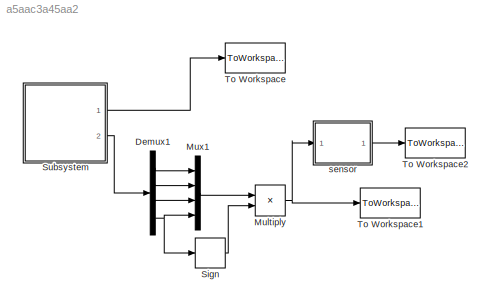
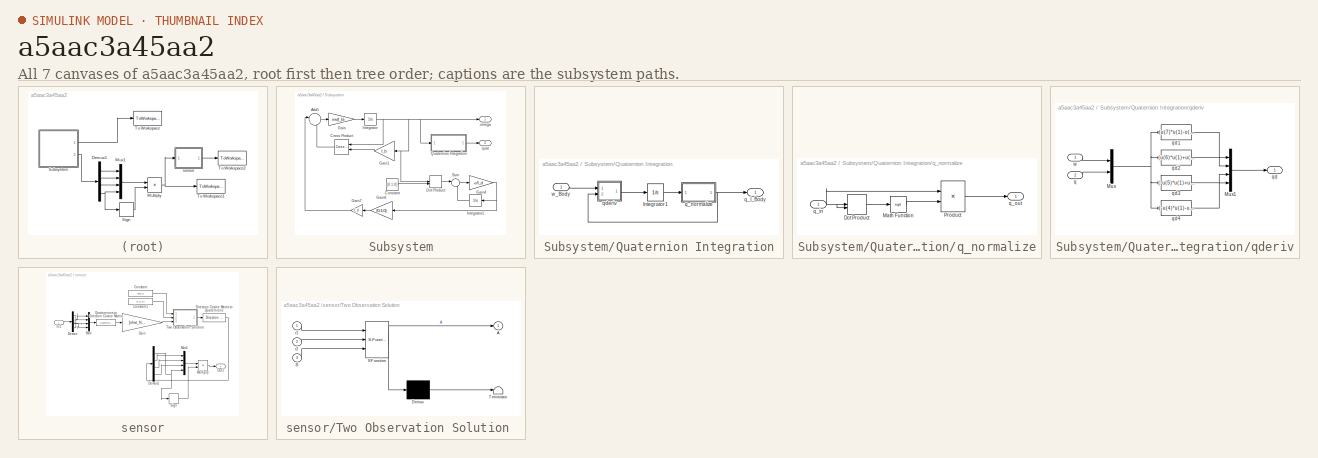
[diagram: thumbnail index - all 7 canvases of the model, root first then tree order]
MODEL slx_a5aac3a45aa2
KIND model
CONFIG AbsTol = auto
CONFIG EnableMultiTasking = off
CONFIG FixedStep = 1
CONFIG MaxStep = auto
CONFIG MinStep = auto
CONFIG RelTol = 1e-3
CONFIG SampleTimeConstraint = Unconstrained
CONFIG Solver = VariableStepAuto
CONFIG SolverName = VariableStepAuto
CONFIG StartTime = 0.0
CONFIG StopTime = t_f
BLOCK [Demux] Demux1
  DisplayOption = bar
  Ports = [1, 4]
BLOCK [Product] Multiply
  InputSameDT = off
  OutDataTypeStr = Inherit: Inherit via internal rule
  Ports = [2, 1]
  RndMeth = Floor
  SaturateOnIntegerOverflow = off
BLOCK [Mux] Mux1
  DisplayOption = bar
  Ports = [4, 1]
BLOCK [Signum] Sign
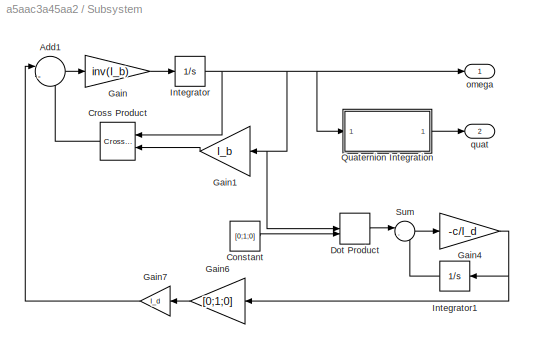
BLOCK [SubSystem] Subsystem
  Ports = [0, 2]
  RequestExecContextInheritance = off
BLOCK [Sum] Subsystem/Add1
  IconShape = round
  InputSameDT = off
  Inputs = |--
  OutDataTypeStr = Inherit: Inherit via internal rule
  Ports = [2, 1]
  SaturateOnIntegerOverflow = off
BLOCK [Constant] Subsystem/Constant
  Value = [0;1;0]
BLOCK [Reference] Subsystem/Cross Product  REF=vrlib/Utilities/Cross Product
  Ports = [2, 1]
  SourceBlock = vrlib/Utilities/Cross Product
  SourceProductBaseCode = VR
  SourceProductName = Simulink 3D Animation
  SourceType = Cross Product
BLOCK [DotProduct] Subsystem/Dot Product
  OutDataTypeStr = Inherit: Inherit via internal rule
BLOCK [Gain] Subsystem/Gain
  Gain = inv(I_b)
  Multiplication = Matrix(K*u) (u vector)
  OutDataTypeStr = Inherit: Inherit via internal rule
  ParamDataTypeStr = Inherit: Inherit via internal rule
  SaturateOnIntegerOverflow = off
BLOCK [Gain] Subsystem/Gain1
  Gain = I_b
  Multiplication = Matrix(K*u) (u vector)
  OutDataTypeStr = Inherit: Inherit via internal rule
  ParamDataTypeStr = Inherit: Inherit via internal rule
  SaturateOnIntegerOverflow = off
BLOCK [Gain] Subsystem/Gain4
  Gain = -c/I_d
  OutDataTypeStr = Inherit: Inherit via internal rule
  ParamDataTypeStr = Inherit: Inherit via internal rule
  SaturateOnIntegerOverflow = off
BLOCK [Gain] Subsystem/Gain6
  Gain = [0;1;0]
  OutDataTypeStr = Inherit: Inherit via internal rule
  ParamDataTypeStr = Inherit: Inherit via internal rule
  SaturateOnIntegerOverflow = off
BLOCK [Gain] Subsystem/Gain7
  Gain = I_d
  OutDataTypeStr = Inherit: Inherit via internal rule
  ParamDataTypeStr = Inherit: Inherit via internal rule
  SaturateOnIntegerOverflow = off
BLOCK [Integrator] Subsystem/Integrator
  InitialCondition = omega_b_t0
  Ports = [1, 1]
BLOCK [Integrator] Subsystem/Integrator1
  Ports = [1, 1]
BLOCK [SubSystem] Subsystem/Quaternion Integration
  Ports = [1, 1]
  RequestExecContextInheritance = off
BLOCK [Integrator] Subsystem/Quaternion Integration/Integrator1
  InitialCondition = q_t0
  Ports = [1, 1]
BLOCK [Outport] Subsystem/Quaternion Integration/q_I_Body
  IconDisplay = Port number
BLOCK [SubSystem] Subsystem/Quaternion Integration/q_normalize
  Ports = [1, 1]
  RequestExecContextInheritance = off
BLOCK [DotProduct] Subsystem/Quaternion Integration/q_normalize/Dot Product
  OutDataTypeStr = Inherit: Inherit via internal rule
BLOCK [Math] Subsystem/Quaternion Integration/q_normalize/Math Function
  Operator = sqrt
  Ports = [1, 1]
BLOCK [Product] Subsystem/Quaternion Integration/q_normalize/Product
  Inputs = */
  Ports = [2, 1]
  RndMeth = Floor
BLOCK [Inport] Subsystem/Quaternion Integration/q_normalize/q_in
  IconDisplay = Port number
  PortDimensions = 4
BLOCK [Outport] Subsystem/Quaternion Integration/q_normalize/q_out
  IconDisplay = Port number
BLOCK [SubSystem] Subsystem/Quaternion Integration/qderiv
  Ports = [2, 1]
  RequestExecContextInheritance = off
BLOCK [Mux] Subsystem/Quaternion Integration/qderiv/Mux
  DisplayOption = bar
  Inputs = 2
  Ports = [2, 1]
BLOCK [Mux] Subsystem/Quaternion Integration/qderiv/Mux1
  DisplayOption = bar
  Ports = [4, 1]
BLOCK [Inport] Subsystem/Quaternion Integration/qderiv/q
  IconDisplay = Port number
  Port = 2
BLOCK [Outport] Subsystem/Quaternion Integration/qderiv/qd
  IconDisplay = Port number
BLOCK [Fcn] Subsystem/Quaternion Integration/qderiv/qd1
  Expr = (u(7)*u(1)-u(6)*u(2)+u(5)*u(3))/2
BLOCK [Fcn] Subsystem/Quaternion Integration/qderiv/qd2
  Expr = (u(6)*u(1)+u(7)*u(2)-u(4)*u(3))/2
BLOCK [Fcn] Subsystem/Quaternion Integration/qderiv/qd3
  Expr = (-u(5)*u(1)+u(4)*u(2)+u(7)*u(3))/2
BLOCK [Fcn] Subsystem/Quaternion Integration/qderiv/qd4
  Expr = (-u(4)*u(1)-u(5)*u(2)-u(6)*u(3))/2
BLOCK [Inport] Subsystem/Quaternion Integration/qderiv/w
  IconDisplay = Port number
BLOCK [Inport] Subsystem/Quaternion Integration/w_Body
  IconDisplay = Port number
BLOCK [Sum] Subsystem/Sum
  IconShape = round
  InputSameDT = off
  Inputs = |-+
  OutDataTypeStr = Inherit: Inherit via internal rule
  Ports = [2, 1]
  SaturateOnIntegerOverflow = off
BLOCK [Outport] Subsystem/omega 
  IconDisplay = Port number
BLOCK [Outport] Subsystem/quat
  IconDisplay = Port number
  Port = 2
BLOCK [ToWorkspace] To Workspace
  FixptAsFi = on
  MaxDataPoints = inf
  Ports = [1]
  SampleTime = -1
  Save2DSignal = 3-D array (concatenate along third dimension)
  SaveFormat = Timeseries
  VariableName = omega
BLOCK [ToWorkspace] To Workspace1
  FixptAsFi = on
  MaxDataPoints = inf
  Ports = [1]
  SampleTime = -1
  Save2DSignal = 3-D array (concatenate along third dimension)
  SaveFormat = Timeseries
  VariableName = quat
BLOCK [ToWorkspace] To Workspace2
  FixptAsFi = on
  MaxDataPoints = inf
  Ports = [1]
  SampleTime = -1
  Save2DSignal = 3-D array (concatenate along third dimension)
  SaveFormat = Timeseries
  VariableName = q_est
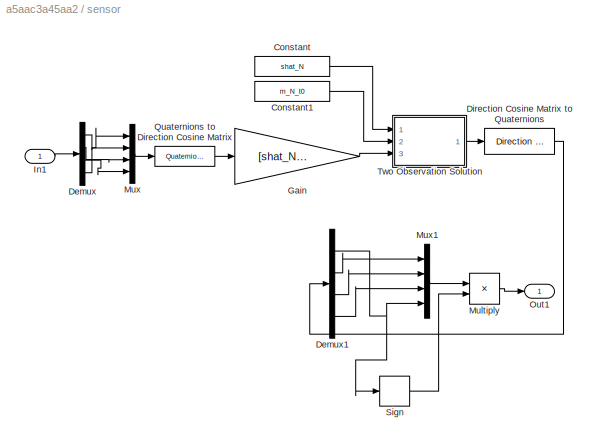
BLOCK [SubSystem] sensor
  Ports = [1, 1]
  RequestExecContextInheritance = off
BLOCK [Constant] sensor/Constant
  Value = shat_N
BLOCK [Constant] sensor/Constant1
  Value = m_N_t0
BLOCK [Demux] sensor/Demux
  DisplayOption = bar
  Ports = [1, 4]
BLOCK [Demux] sensor/Demux1
  DisplayOption = bar
  Ports = [1, 4]
BLOCK [Reference] sensor/Direction Cosine Matrix to Quaternions  REF=sharedtransform/Direction Cosine Matrix 
to Quaternions
  Ports = [1, 1]
  SourceBlock = sharedtransform/Direction Cosine Matrix \nto Quaternions
  SourceProductBaseCode = AE
  SourceProductName = Aerospace Blockset
  SourceType = DCM2Quaternion
BLOCK [Gain] sensor/Gain
  Gain = [shat_N m_N_t0]
  Multiplication = Matrix(u*K)
  OutDataTypeStr = Inherit: Inherit via internal rule
  ParamDataTypeStr = Inherit: Inherit via internal rule
  SaturateOnIntegerOverflow = off
BLOCK [Inport] sensor/In1
  IconDisplay = Port number
BLOCK [Product] sensor/Multiply
  InputSameDT = off
  OutDataTypeStr = Inherit: Inherit via internal rule
  Ports = [2, 1]
  RndMeth = Floor
  SaturateOnIntegerOverflow = off
BLOCK [Mux] sensor/Mux
  DisplayOption = bar
  Ports = [4, 1]
BLOCK [Mux] sensor/Mux1
  DisplayOption = bar
  Ports = [4, 1]
BLOCK [Outport] sensor/Out1
  IconDisplay = Port number
BLOCK [Reference] sensor/Quaternions to Direction Cosine Matrix  REF=sharedtransform/Quaternions to 
Direction Cosine Matrix
  Ports = [1, 1]
  SourceBlock = sharedtransform/Quaternions to \nDirection Cosine Matrix
  SourceProductBaseCode = AE
  SourceProductName = Aerospace Blockset
  SourceType = Quaternion2DCM
BLOCK [Signum] sensor/Sign
BLOCK [SubSystem] sensor/Two Observation Solution 
  ErrorFcn = Stateflow.Translate.translate
  PermitHierarchicalResolution = ExplicitOnly
  Ports = [3, 1]
  RequestExecContextInheritance = off
  SFBlockType = MATLAB Function
  TreatAsAtomicUnit = on
BLOCK [Demux] sensor/Two Observation Solution / Demux 
  Outputs = 1
  Ports = [1, 1]
BLOCK [S-Function] sensor/Two Observation Solution / SFunction 
  EnableBusSupport = on
  FunctionName = sf_sfun
  PortCounts = [3 2]
  Ports = [3, 2]
  SFcnIsStateOwnerBlock = off
  SFunctionDeploymentMode = off
  Tag = Stateflow S-Function q3_model 2
BLOCK [Terminator] sensor/Two Observation Solution / Terminator 
BLOCK [Outport] sensor/Two Observation Solution /A
  IconDisplay = Port number
BLOCK [Inport] sensor/Two Observation Solution /B
  IconDisplay = Port number
  Port = 3
BLOCK [Inport] sensor/Two Observation Solution /r1
  IconDisplay = Port number
BLOCK [Inport] sensor/Two Observation Solution /r2
  IconDisplay = Port number
  Port = 2
LINE Demux1:1 -> Mux1:1
LINE Demux1:2 -> Mux1:2
LINE Demux1:3 -> Mux1:3
NET Demux1:4 -> Mux1:4, Sign:1
NET Multiply:1 -> To Workspace1:1, sensor:1
LINE Mux1:1 -> Multiply:1
LINE Sign:1 -> Multiply:2
LINE Subsystem/Add1:1 -> Subsystem/Gain:1
LINE Subsystem/Constant:1 -> Subsystem/Dot Product:2
LINE Subsystem/Cross Product:1 -> Subsystem/Add1:2
LINE Subsystem/Dot Product:1 -> Subsystem/Sum:1
LINE Subsystem/Gain1:1 -> Subsystem/Cross Product:2
NET Subsystem/Gain4:1 -> Subsystem/Gain6:1, Subsystem/Integrator1:1
LINE Subsystem/Gain6:1 -> Subsystem/Gain7:1
LINE Subsystem/Gain7:1 -> Subsystem/Add1:1
LINE Subsystem/Gain:1 -> Subsystem/Integrator:1
LINE Subsystem/Integrator1:1 -> Subsystem/Sum:2
NET Subsystem/Integrator:1 -> Subsystem/Cross Product:1, Subsystem/Dot Product:1, Subsystem/Gain1:1, Subsystem/Quaternion Integration:1, Subsystem/omega :1
LINE Subsystem/Quaternion Integration/Integrator1:1 -> Subsystem/Quaternion Integration/q_normalize:1
LINE Subsystem/Quaternion Integration/q_normalize/Dot Product:1 -> Subsystem/Quaternion Integration/q_normalize/Math Function:1
LINE Subsystem/Quaternion Integration/q_normalize/Math Function:1 -> Subsystem/Quaternion Integration/q_normalize/Product:2
LINE Subsystem/Quaternion Integration/q_normalize/Product:1 -> Subsystem/Quaternion Integration/q_normalize/q_out:1
NET Subsystem/Quaternion Integration/q_normalize/q_in:1 -> Subsystem/Quaternion Integration/q_normalize/Dot Product:1, Subsystem/Quaternion Integration/q_normalize/Dot Product:2, Subsystem/Quaternion Integration/q_normalize/Product:1
NET Subsystem/Quaternion Integration/q_normalize:1 -> Subsystem/Quaternion Integration/q_I_Body:1, Subsystem/Quaternion Integration/qderiv:2
LINE Subsystem/Quaternion Integration/qderiv/Mux1:1 -> Subsystem/Quaternion Integration/qderiv/qd:1
NET Subsystem/Quaternion Integration/qderiv/Mux:1 -> Subsystem/Quaternion Integration/qderiv/qd1:1, Subsystem/Quaternion Integration/qderiv/qd2:1, Subsystem/Quaternion Integration/qderiv/qd3:1, Subsystem/Quaternion Integration/qderiv/qd4:1
LINE Subsystem/Quaternion Integration/qderiv/q:1 -> Subsystem/Quaternion Integration/qderiv/Mux:2
LINE Subsystem/Quaternion Integration/qderiv/qd1:1 -> Subsystem/Quaternion Integration/qderiv/Mux1:1
LINE Subsystem/Quaternion Integration/qderiv/qd2:1 -> Subsystem/Quaternion Integration/qderiv/Mux1:2
LINE Subsystem/Quaternion Integration/qderiv/qd3:1 -> Subsystem/Quaternion Integration/qderiv/Mux1:3
LINE Subsystem/Quaternion Integration/qderiv/qd4:1 -> Subsystem/Quaternion Integration/qderiv/Mux1:4
LINE Subsystem/Quaternion Integration/qderiv/w:1 -> Subsystem/Quaternion Integration/qderiv/Mux:1
LINE Subsystem/Quaternion Integration/qderiv:1 -> Subsystem/Quaternion Integration/Integrator1:1
LINE Subsystem/Quaternion Integration/w_Body:1 -> Subsystem/Quaternion Integration/qderiv:1
LINE Subsystem/Quaternion Integration:1 -> Subsystem/quat:1
LINE Subsystem/Sum:1 -> Subsystem/Gain4:1
LINE Subsystem:1 -> To Workspace:1
LINE Subsystem:2 -> Demux1:1
LINE sensor/Constant1:1 -> sensor/Two Observation Solution :2
LINE sensor/Constant:1 -> sensor/Two Observation Solution :1
NET sensor/Demux1:1 -> sensor/Mux1:4, sensor/Sign:1
LINE sensor/Demux1:2 -> sensor/Mux1:1
LINE sensor/Demux1:3 -> sensor/Mux1:2
LINE sensor/Demux1:4 -> sensor/Mux1:3
LINE sensor/Demux:1 -> sensor/Mux:2
LINE sensor/Demux:2 -> sensor/Mux:3
LINE sensor/Demux:3 -> sensor/Mux:4
LINE sensor/Demux:4 -> sensor/Mux:1
LINE sensor/Direction Cosine Matrix to Quaternions:1 -> sensor/Demux1:1
LINE sensor/Gain:1 -> sensor/Two Observation Solution :3
LINE sensor/In1:1 -> sensor/Demux:1
LINE sensor/Multiply:1 -> sensor/Out1:1
LINE sensor/Mux1:1 -> sensor/Multiply:1
LINE sensor/Mux:1 -> sensor/Quaternions to Direction Cosine Matrix:1
LINE sensor/Quaternions to Direction Cosine Matrix:1 -> sensor/Gain:1
LINE sensor/Sign:1 -> sensor/Multiply:2
LINE sensor/Two Observation Solution :1 -> sensor/Direction Cosine Matrix to Quaternions:1
LINE sensor:1 -> To Workspace2:1
note: NET lines group one-source signal fan-out (src -> all destinations, sorted); 1:1 wires keep LINE
CHART sensor/Two Observation Solution
 states=1 transitions=1
  STATE_LABEL 'eML_blk_kernel()'
  STATE_LABEL "SCRIPT:\nfunction A = twoobs(r1, r2, B)\nlmax = 0;\nbx = zeros(3,1);\nrx = zeros(3,1);\nA = zeros(3,3);\nq_out = zeros(4,1);\n\na1 = 0.95;\na2 = 0.05;\nb1 = B(:,1);\nb2 = B(:,2)+0.1;\nl0 = a1+a2;\nlmax = (a1^2 + a2^2 + 2*a1*a2*(dot(b1,b2)*dot(r1,r2) ...\n    + (norm(crs(b1)*b2)*norm(crs(r1)*r2))))^(0.5);\nbx = (crs(b1)*b2)/norm(crs(b1)*b2);\nrx = (crs(r1)*r2)/norm(crs(r1)*r2);\nA = (a1/lmax)*(b1*r1.' + (crs(b1)*bx...<+107ch>"
